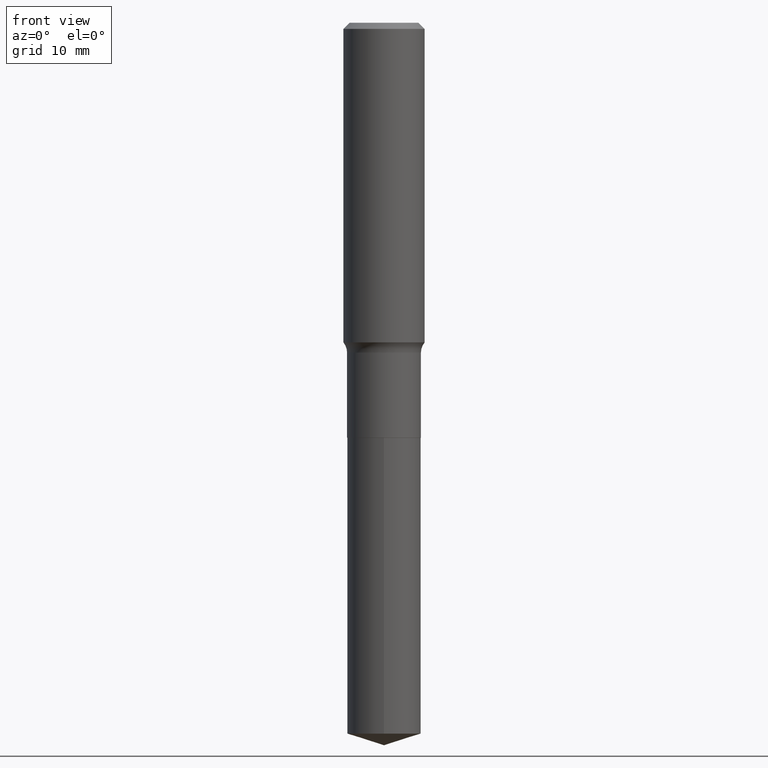
[diagram: clean part render]
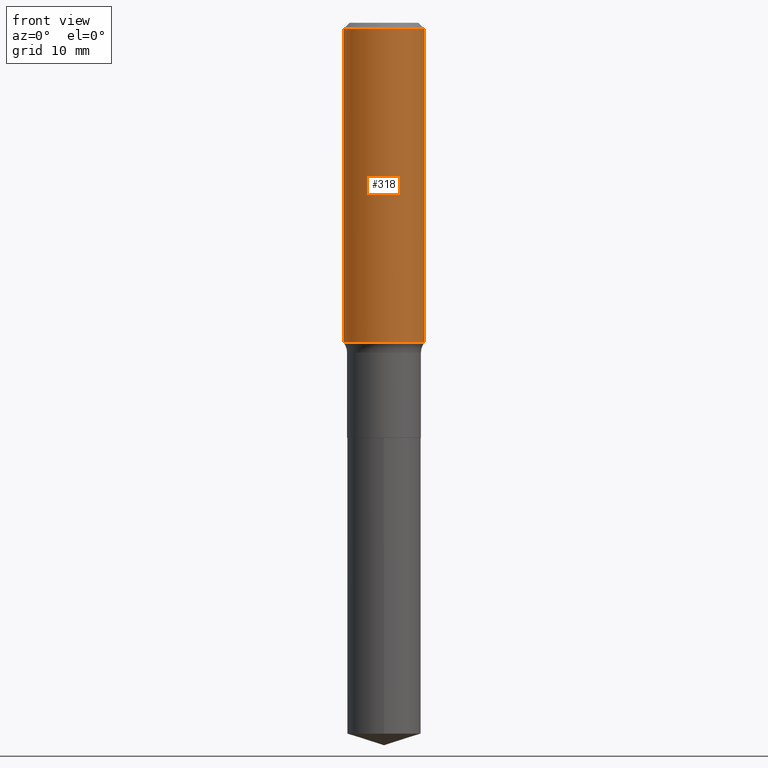
[diagram: same view with one face highlighted and labeled with its STEP entity id]
A machine part, front view. The second image highlights one B-rep face of the part: STEP entity #318.
In plain terms, the highlighted cylindrical surface (partial cylindrical patch) has radius 5 mm, axis along (-0, 0, 1).
Its self-contained STEP definition (entity closure, byte-faithful):
#4 = CARTESIAN_POINT ( 'NONE',  ( 0.1968500000000002470, -6.787522268346197963E-15, -1.550323642009541203 ) ) ;
#8 = CARTESIAN_POINT ( 'NONE',  ( -0.1968500000000000527, -1.359307014894414260E-15, -0.02952750000000018554 ) ) ;
#19 = CARTESIAN_POINT ( 'NONE',  ( 7.220858017463207734E-31, -1.030947152326916363E-16, -0.02952750000000018554 ) ) ;
#31 = CARTESIAN_POINT ( 'NONE',  ( 0.1968500000000001360, -1.374596203102542594E-15, 9.598753983154306463E-30 ) ) ;
#51 = ORIENTED_EDGE ( 'NONE', *, *, #308, .T. ) ;
#62 = CARTESIAN_POINT ( 'NONE',  ( 3.791268106025665529E-29, -5.412926065243653988E-15, -1.550323642009541203 ) ) ;
#70 = ORIENTED_EDGE ( 'NONE', *, *, #484, .T. ) ;
#78 = EDGE_CURVE ( 'NONE', #390, #132, #303, .T. ) ;
#86 = AXIS2_PLACEMENT_3D ( 'NONE', #62, #298, #419 ) ;
#123 = EDGE_LOOP ( 'NONE', ( #247, #51, #70, #400 ) ) ;
#132 = VERTEX_POINT ( 'NONE', #266 ) ;
#139 = VECTOR ( 'NONE', #348, 39.37007874015748143 ) ;
#144 = FACE_OUTER_BOUND ( 'NONE', #123, .T. ) ;
#153 = DIRECTION ( 'NONE',  ( -2.445468806185136877E-29, 3.491481338843145188E-15, 1.000000000000000000 ) ) ;
#160 = VERTEX_POINT ( 'NONE', #457 ) ;
#168 = DIRECTION ( 'NONE',  ( -2.445468806185136597E-29, 3.491481338843145583E-15, 1.000000000000000000 ) ) ;
#190 = LINE ( 'NONE', #358, #349 ) ;
#200 = VERTEX_POINT ( 'NONE', #4 ) ;
#213 = CYLINDRICAL_SURFACE ( 'NONE', #326, 0.1968500000000001360 ) ;
#227 = EDGE_CURVE ( 'NONE', #160, #390, #190, .T. ) ;
#247 = ORIENTED_EDGE ( 'NONE', *, *, #227, .F. ) ;
#266 = CARTESIAN_POINT ( 'NONE',  ( 0.1968500000000000527, -1.477690918335233688E-15, -0.02952750000000018554 ) ) ;
#297 = CARTESIAN_POINT ( 'NONE',  ( 0.000000000000000000, 0.000000000000000000, 0.000000000000000000 ) ) ;
#298 = DIRECTION ( 'NONE',  ( -2.445468806185136597E-29, 3.491481338843145583E-15, 1.000000000000000000 ) ) ;
#303 = CIRCLE ( 'NONE', #413, 0.1968500000000000527 ) ;
#308 = EDGE_CURVE ( 'NONE', #160, #200, #437, .T. ) ;
#318 = ADVANCED_FACE ( 'NONE', ( #144 ), #213, .T. ) ;
#326 = AXIS2_PLACEMENT_3D ( 'NONE', #297, #343, #379 ) ;
#343 = DIRECTION ( 'NONE',  ( -2.445468806185136597E-29, 3.491481338843145583E-15, 1.000000000000000000 ) ) ;
#348 = DIRECTION ( 'NONE',  ( -2.445468806185136877E-29, 3.491481338843145188E-15, 1.000000000000000000 ) ) ;
#349 = VECTOR ( 'NONE', #153, 39.37007874015748143 ) ;
#358 = CARTESIAN_POINT ( 'NONE',  ( -0.1968500000000001360, 1.398703375343758182E-15, -9.682923725166790684E-30 ) ) ;
#379 = DIRECTION ( 'NONE',  ( 1.000000000000000000, -6.982962677686266711E-15, 4.876176775795935793E-29 ) ) ;
#390 = VERTEX_POINT ( 'NONE', #8 ) ;
#400 = ORIENTED_EDGE ( 'NONE', *, *, #78, .F. ) ;
#413 = AXIS2_PLACEMENT_3D ( 'NONE', #19, #168, #479 ) ;
#419 = DIRECTION ( 'NONE',  ( 1.000000000000000000, -6.982962677686269866E-15, 0.000000000000000000 ) ) ;
#437 = CIRCLE ( 'NONE', #86, 0.1968500000000002470 ) ;
#452 = LINE ( 'NONE', #31, #139 ) ;
#457 = CARTESIAN_POINT ( 'NONE',  ( -0.1968500000000002470, -4.014222689899894622E-15, -1.550323642009541203 ) ) ;
#479 = DIRECTION ( 'NONE',  ( 1.000000000000000000, -6.982962677686266711E-15, 0.000000000000000000 ) ) ;
#484 = EDGE_CURVE ( 'NONE', #200, #132, #452, .T. ) ;